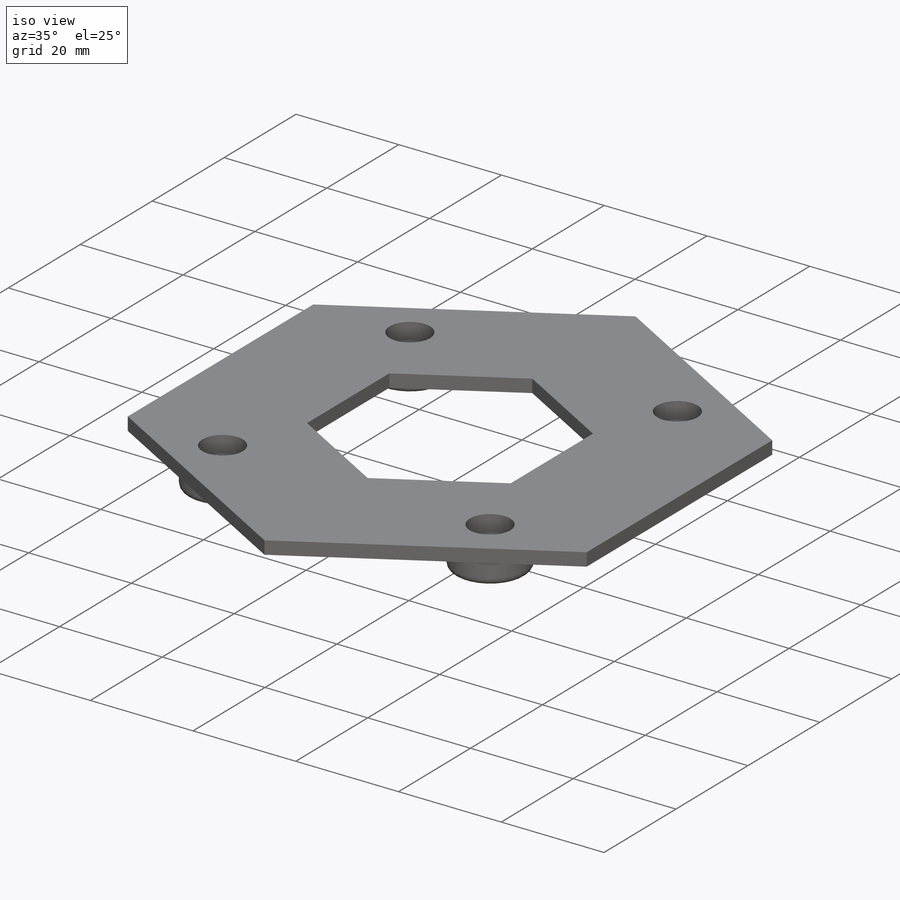
[diagram: iso view]
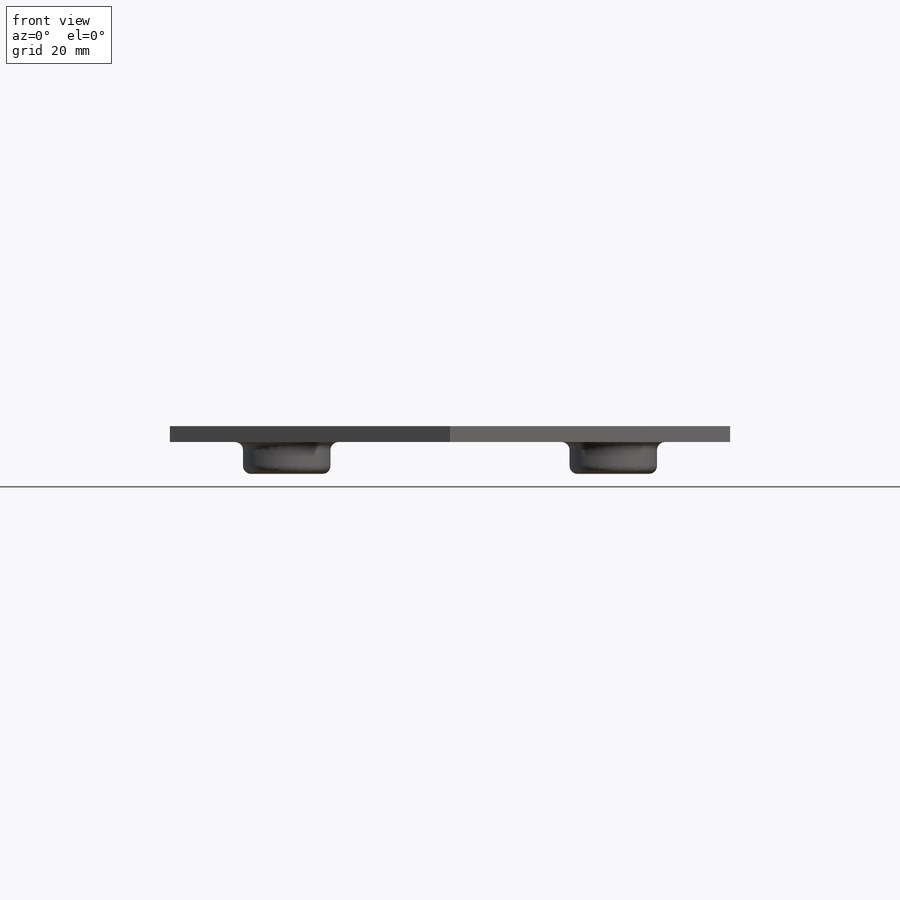
[diagram: front view]
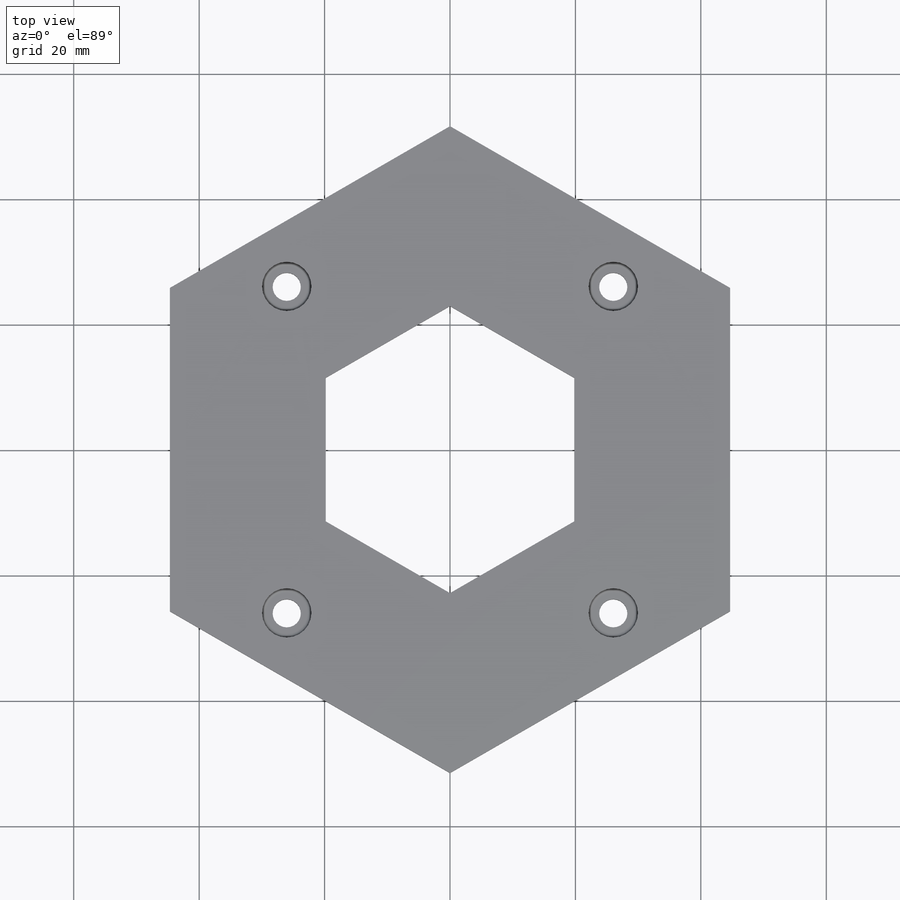
[diagram: top view]
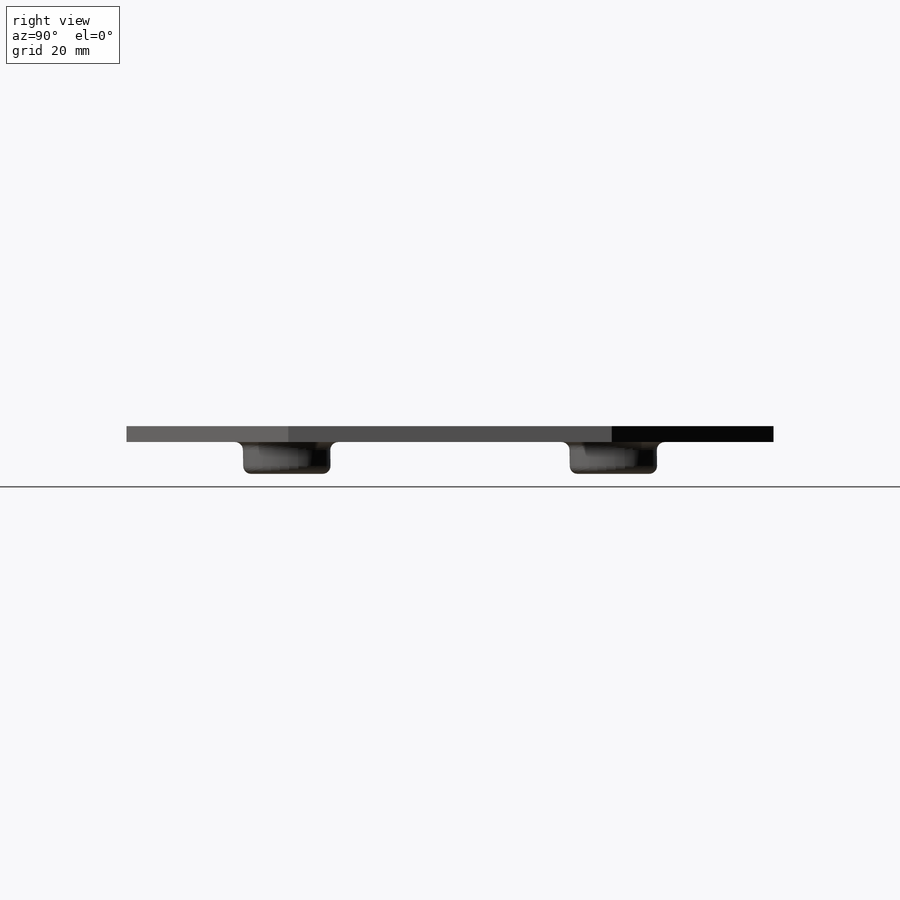
[diagram: right view]
SOLIDWORKS PART (.sldprt)
format: sldprt  version: not decoded by parser v0  size: 317,952 bytes
history: native  units: mm
features: sketch x5, cut_extrude x3, extrude x2, fillet x2, material x1 (+13 scaffold rows collapsed)
feature tree (26):
  scaffold x13  (default folders/planes/origin — collapsed)
  material  "Material <not specified>"
  sketch  "Sketch1"  dims[D3=7.874mm D1=26.035mm D2=26.035mm D5=55.245mm D4=4.0]
  extrude  "Boss-Extrude1"  Depth=2.54mm
  sketch  "Sketch2"  dims[D1=13.97mm D2=4.0]
  extrude  "Boss-Extrude2"  Depth=5.08mm
  sketch  "Sketch4"  dims[D1=4.0]
  cut_extrude  "Cut-Extrude1"  Depth=1.27mm
  sketch  "Sketch5"  dims[D1=4.5mm D3=52.07mm D2=4.0]
  cut_extrude  "Cut-Extrude2"  Depth=3.81mm
  fillet  "Fillet1"  Radius=0.635mm
  fillet  "Fillet2"  Radius=1.27mm
  sketch  "Sketch8"  dims[D1=~24.851422mm]
  cut_extrude  "Cut-Extrude3"  Depth=2.54mm
decode coverage: 12 of 12 modeling features carry decoded parameters
note: ~ marks probable driven/reference dimensions
note: suppression state not decoded; provenance and decode notes live in map.json
